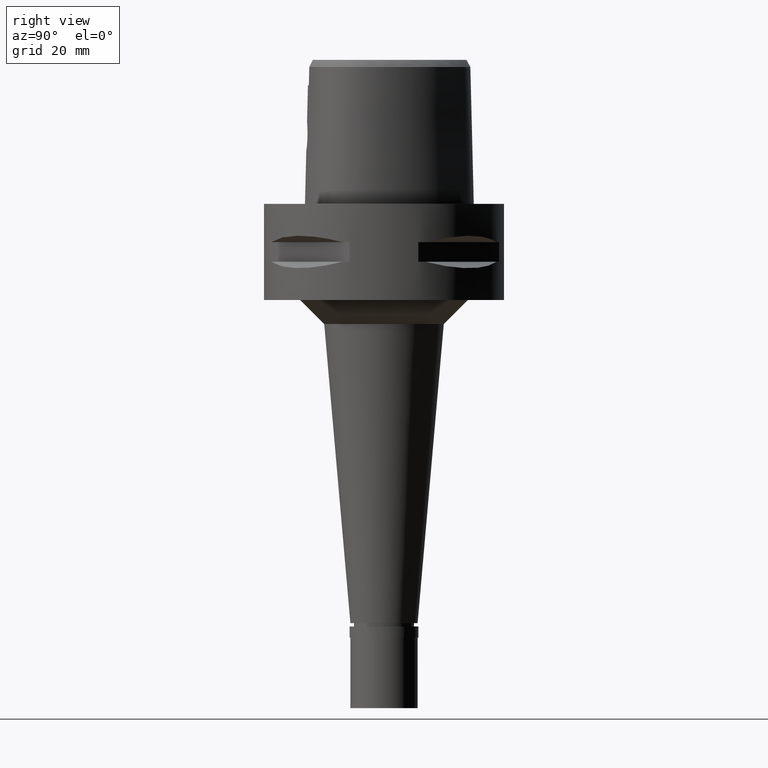
[diagram: clean part render]
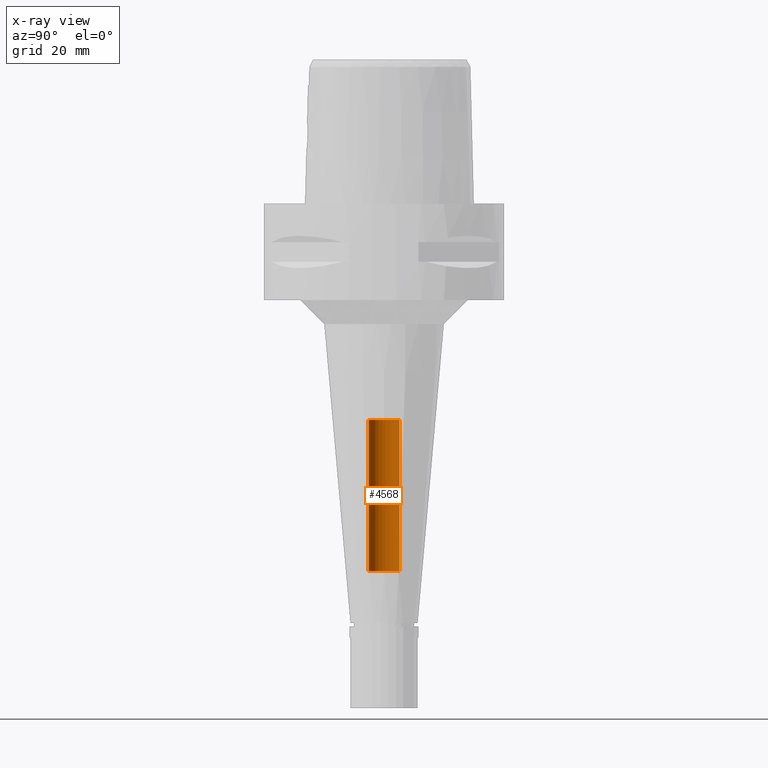
[diagram: x-ray — body ghosted, one internal face saturated and labeled with its STEP entity id]
A machine part, right view, then the same camera in x-ray: the body is ghosted and one INTERNAL B-rep face — a face not visible from any outside direction — is saturated and labeled: STEP entity #4568.
In plain terms, the highlighted cylindrical surface (edge-blend (fillet) strip) has radius 3.2 mm, axis along (0, 0, -1).
Its self-contained STEP definition (entity closure, byte-faithful):
#7 = EDGE_CURVE ( 'NONE', #651, #3689, #1331, .T. ) ;
#59 = VERTEX_POINT ( 'NONE', #2403 ) ;
#205 = EDGE_CURVE ( 'NONE', #651, #2029, #4384, .T. ) ;
#347 = VECTOR ( 'NONE', #1712, 1000.000000000000000 ) ;
#444 = DIRECTION ( 'NONE',  ( 0.0000000000000000000, -1.000000000000000000, 0.0000000000000000000 ) ) ;
#556 = CARTESIAN_POINT ( 'NONE',  ( 0.0000000000000000000, 3.200000000000000178, -76.50000000000000000 ) ) ;
#576 = LINE ( 'NONE', #556, #4163 ) ;
#577 = CARTESIAN_POINT ( 'NONE',  ( 0.0000000000000000000, -3.200000000000000178, -76.50000000000000000 ) ) ;
#651 = VERTEX_POINT ( 'NONE', #3909 ) ;
#781 = CYLINDRICAL_SURFACE ( 'NONE', #2452, 3.200000000000000178 ) ;
#801 = CARTESIAN_POINT ( 'NONE',  ( 0.0000000000000000000, 1.286491462503999938E-14, 5.049999999999999822 ) ) ;
#822 = AXIS2_PLACEMENT_3D ( 'NONE', #1757, #1036, #2185 ) ;
#909 = CIRCLE ( 'NONE', #3616, 3.200000000000000178 ) ;
#1036 = DIRECTION ( 'NONE',  ( 0.0000000000000000000, 0.0000000000000000000, -1.000000000000000000 ) ) ;
#1068 = EDGE_LOOP ( 'NONE', ( #3204, #1730, #2190, #4397 ) ) ;
#1331 = LINE ( 'NONE', #577, #347 ) ;
#1712 = DIRECTION ( 'NONE',  ( 0.0000000000000000000, 0.0000000000000000000, 1.000000000000000000 ) ) ;
#1730 = ORIENTED_EDGE ( 'NONE', *, *, #7, .F. ) ;
#1757 = CARTESIAN_POINT ( 'NONE',  ( 0.0000000000000000000, 1.286491462503999938E-14, -76.50000000000000000 ) ) ;
#2029 = VERTEX_POINT ( 'NONE', #2690 ) ;
#2046 = DIRECTION ( 'NONE',  ( 0.0000000000000000000, 0.0000000000000000000, 1.000000000000000000 ) ) ;
#2185 = DIRECTION ( 'NONE',  ( 0.0000000000000000000, -1.000000000000000000, 0.0000000000000000000 ) ) ;
#2190 = ORIENTED_EDGE ( 'NONE', *, *, #205, .T. ) ;
#2252 = DIRECTION ( 'NONE',  ( 0.0000000000000000000, 0.0000000000000000000, -1.000000000000000000 ) ) ;
#2403 = CARTESIAN_POINT ( 'NONE',  ( 0.0000000000000000000, 3.200000000000000178, -45.00000000000000000 ) ) ;
#2452 = AXIS2_PLACEMENT_3D ( 'NONE', #801, #2252, #444 ) ;
#2485 = DIRECTION ( 'NONE',  ( 0.0000000000000000000, 0.0000000000000000000, 1.000000000000000000 ) ) ;
#2601 = FACE_OUTER_BOUND ( 'NONE', #1068, .T. ) ;
#2690 = CARTESIAN_POINT ( 'NONE',  ( 0.0000000000000000000, 3.200000000000000178, -76.50000000000000000 ) ) ;
#3154 = CARTESIAN_POINT ( 'NONE',  ( 0.0000000000000000000, -3.200000000000000178, -45.00000000000000000 ) ) ;
#3204 = ORIENTED_EDGE ( 'NONE', *, *, #3434, .T. ) ;
#3434 = EDGE_CURVE ( 'NONE', #59, #3689, #909, .T. ) ;
#3616 = AXIS2_PLACEMENT_3D ( 'NONE', #4701, #2485, #4344 ) ;
#3689 = VERTEX_POINT ( 'NONE', #3154 ) ;
#3909 = CARTESIAN_POINT ( 'NONE',  ( 0.0000000000000000000, -3.200000000000000178, -76.50000000000000000 ) ) ;
#4114 = EDGE_CURVE ( 'NONE', #2029, #59, #576, .T. ) ;
#4163 = VECTOR ( 'NONE', #2046, 1000.000000000000000 ) ;
#4344 = DIRECTION ( 'NONE',  ( 0.0000000000000000000, 1.000000000000000000, 0.0000000000000000000 ) ) ;
#4384 = CIRCLE ( 'NONE', #822, 3.200000000000000178 ) ;
#4397 = ORIENTED_EDGE ( 'NONE', *, *, #4114, .T. ) ;
#4568 = ADVANCED_FACE ( 'NONE', ( #2601 ), #781, .F. ) ;
#4701 = CARTESIAN_POINT ( 'NONE',  ( 0.0000000000000000000, 1.286491462503999938E-14, -45.00000000000000000 ) ) ;